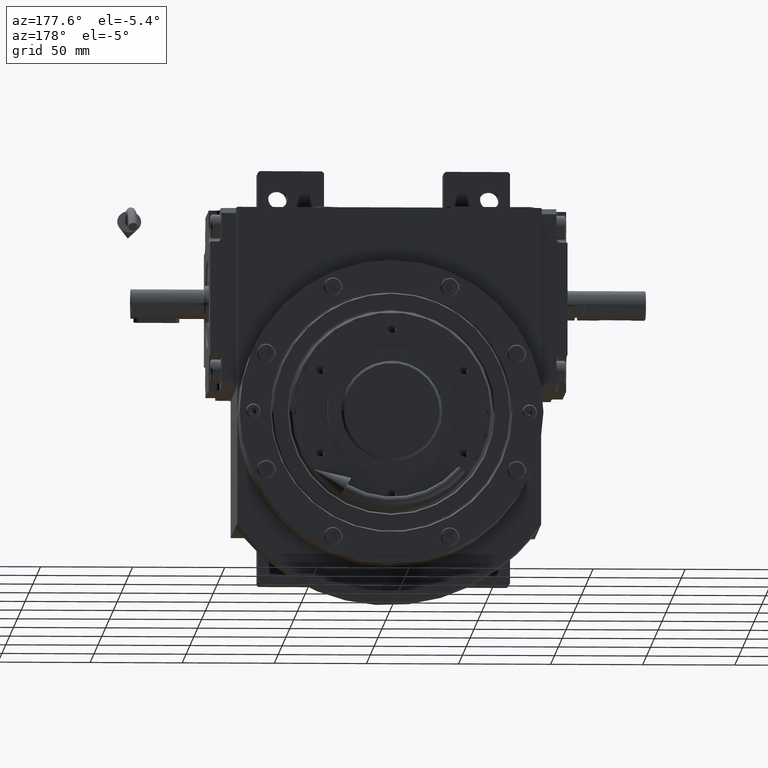
[diagram: clean part render]
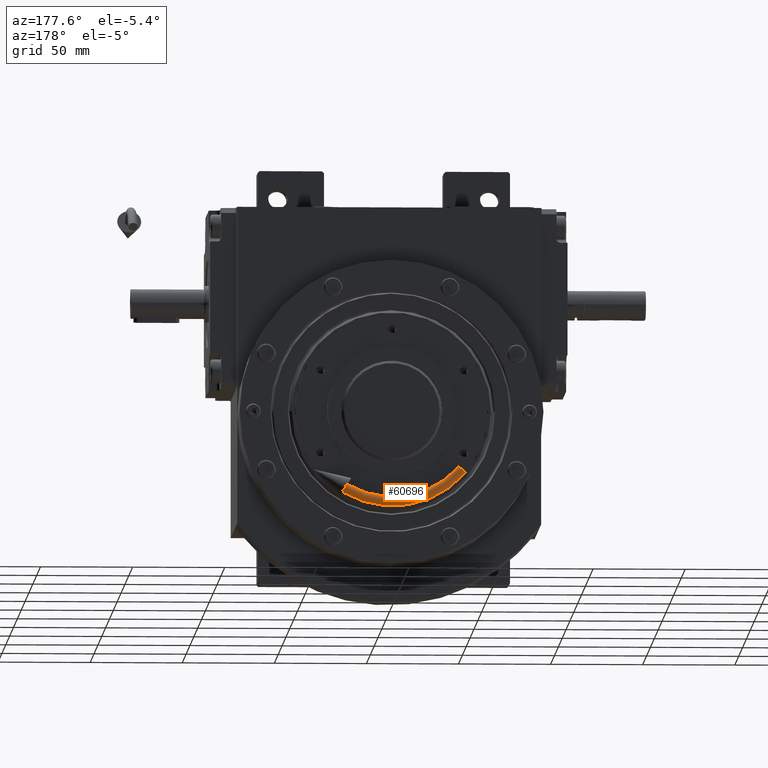
[diagram: same view with one face highlighted and labeled with its STEP entity id]
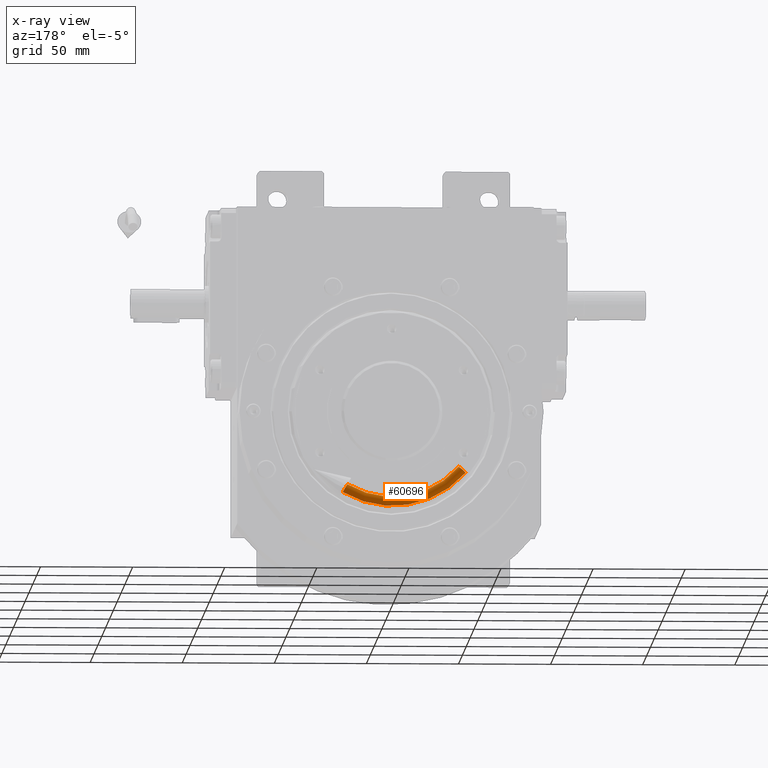
[diagram: x-ray of the same camera — body ghosted, the highlighted face saturated]
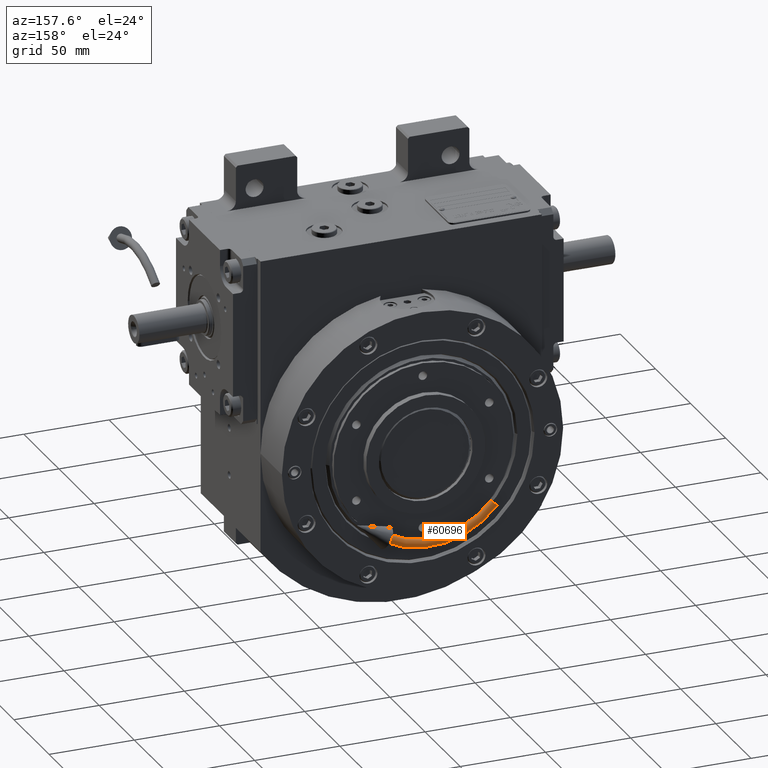
[diagram: same view with one face highlighted and labeled with its STEP entity id]
A machine part, auxiliary view. The second image highlights one B-rep face of the part: STEP entity #60696.
The next image is the same camera in x-ray: the body ghosted, the highlighted face saturated — about 0% of this face is hidden behind the body in this view.
A second angle (auxiliary view) of the same face is appended — the face is thin or edge-on in the first view.
In plain terms, the highlighted toroidal blend (fillet) surface has major radius 50 mm and minor (blend) radius 2.5 mm.
Its self-contained STEP definition (entity closure, byte-faithful):
#326 = EDGE_CURVE ( 'NONE', #36367, #5834, #27266, .T. ) ;
#659 = FACE_OUTER_BOUND ( 'NONE', #62283, .T. ) ;
#5834 = VERTEX_POINT ( 'NONE', #62465 ) ;
#6285 = EDGE_CURVE ( 'NONE', #60544, #59596, #58235, .T. ) ;
#7683 = AXIS2_PLACEMENT_3D ( 'NONE', #13706, #53159, #27574 ) ;
#7699 = EDGE_CURVE ( 'NONE', #36367, #60544, #36955, .T. ) ;
#9986 = DIRECTION ( 'NONE',  ( 1.000000000000000000, -2.041375527991181795E-16, 0.000000000000000000 ) ) ;
#10728 = DIRECTION ( 'NONE',  ( -2.041375527991182042E-16, -1.000000000000000000, 1.232595164407830946E-32 ) ) ;
#11675 = CARTESIAN_POINT ( 'NONE',  ( -49.99999999999962341, 0.000000000000000000, -1.387778780781445676E-14 ) ) ;
#13706 = CARTESIAN_POINT ( 'NONE',  ( -8.682408883346308670, -1.387778780781445676E-14, 49.24038765061003176 ) ) ;
#19832 = ORIENTED_EDGE ( 'NONE', *, *, #62870, .F. ) ;
#21983 = DIRECTION ( 'NONE',  ( 1.000000000000000000, -2.041375527991182042E-16, 0.000000000000000000 ) ) ;
#23167 = DIRECTION ( 'NONE',  ( 5.551115123125820913E-17, 0.000000000000000000, 1.000000000000000000 ) ) ;
#27266 = CIRCLE ( 'NONE', #7683, 2.499999999983113064 ) ;
#27523 = AXIS2_PLACEMENT_3D ( 'NONE', #53634, #35162, #9986 ) ;
#27574 = DIRECTION ( 'NONE',  ( 0.1736481776669271393, 1.686894387621676009E-16, -0.9848077530122086864 ) ) ;
#30417 = TOROIDAL_SURFACE ( 'NONE', #51130, 50.00000000000000000, 2.499999999983133048 ) ;
#32249 = ORIENTED_EDGE ( 'NONE', *, *, #326, .F. ) ;
#33278 = CARTESIAN_POINT ( 'NONE',  ( -52.49999999998293276, -3.160566285864233684E-15, -1.373900992973723831E-14 ) ) ;
#35138 = ORIENTED_EDGE ( 'NONE', *, *, #6285, .T. ) ;
#35162 = DIRECTION ( 'NONE',  ( -2.041375527991182042E-16, -1.000000000000000000, 1.232595164407830946E-32 ) ) ;
#36367 = VERTEX_POINT ( 'NONE', #44672 ) ;
#36955 = CIRCLE ( 'NONE', #59726, 47.50000000001686828 ) ;
#43201 = DIRECTION ( 'NONE',  ( 1.000000000000000000, 0.000000000000000000, -5.551115123125813517E-17 ) ) ;
#44672 = CARTESIAN_POINT ( 'NONE',  ( -8.248288439181953535, -1.188784069127382043E-14, 46.77836826809632953 ) ) ;
#46362 = ORIENTED_EDGE ( 'NONE', *, *, #7699, .T. ) ;
#50159 = DIRECTION ( 'NONE',  ( 1.000000000000000000, -2.041375527991182042E-16, -5.551115123125820913E-17 ) ) ;
#51130 = AXIS2_PLACEMENT_3D ( 'NONE', #55015, #10728, #50159 ) ;
#52076 = DIRECTION ( 'NONE',  ( -2.041375527991182042E-16, -1.000000000000000000, 1.232595164407830946E-32 ) ) ;
#53159 = DIRECTION ( 'NONE',  ( 0.9848077530122086864, -2.010362446775138044E-16, 0.1736481776669274446 ) ) ;
#53634 = CARTESIAN_POINT ( 'NONE',  ( 0.000000000000000000, -1.387778780781445676E-14, 0.000000000000000000 ) ) ;
#55015 = CARTESIAN_POINT ( 'NONE',  ( 0.000000000000000000, -1.387778780781445676E-14, 0.000000000000000000 ) ) ;
#55453 = CIRCLE ( 'NONE', #27523, 52.49999999998313882 ) ;
#56197 = AXIS2_PLACEMENT_3D ( 'NONE', #11675, #23167, #43201 ) ;
#57070 = CARTESIAN_POINT ( 'NONE',  ( -47.50000000001650591, 0.000000000000000000, -1.401656568589166416E-14 ) ) ;
#58235 = CIRCLE ( 'NONE', #56197, 2.499999999983113064 ) ;
#59596 = VERTEX_POINT ( 'NONE', #33278 ) ;
#59726 = AXIS2_PLACEMENT_3D ( 'NONE', #61752, #52076, #21983 ) ;
#60544 = VERTEX_POINT ( 'NONE', #57070 ) ;
#60696 = ADVANCED_FACE ( 'NONE', ( #659 ), #30417, .T. ) ;
#61752 = CARTESIAN_POINT ( 'NONE',  ( 6.249910015488181172E-32, -1.357162610802968412E-14, -3.773734306815928641E-48 ) ) ;
#62283 = EDGE_LOOP ( 'NONE', ( #19832, #32249, #46362, #35138 ) ) ;
#62465 = CARTESIAN_POINT ( 'NONE',  ( -9.116529327510729530, -1.201676182087502474E-14, 51.70240703312413189 ) ) ;
#62870 = EDGE_CURVE ( 'NONE', #5834, #59596, #55453, .T. ) ;